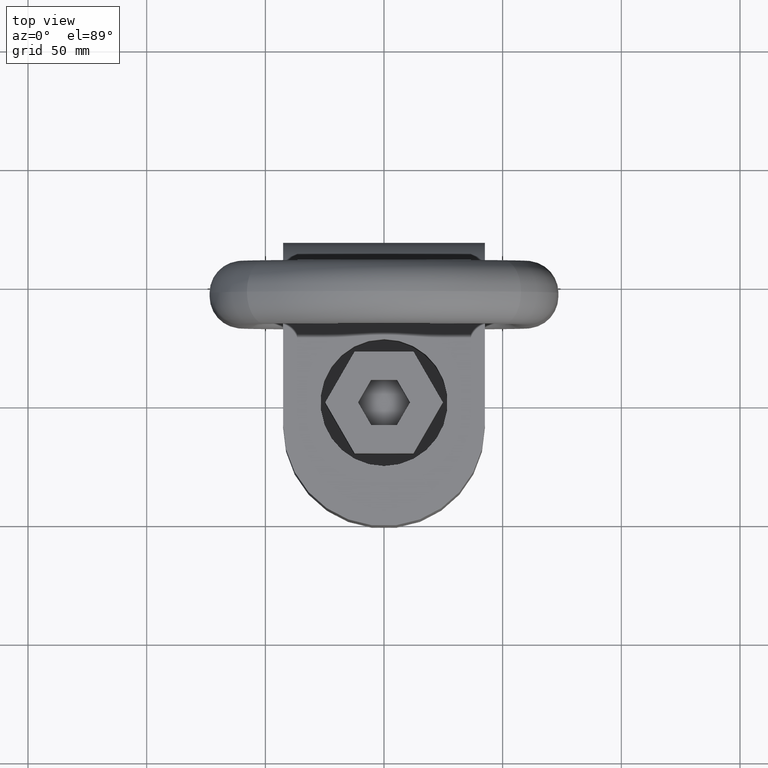
[diagram: clean part render]
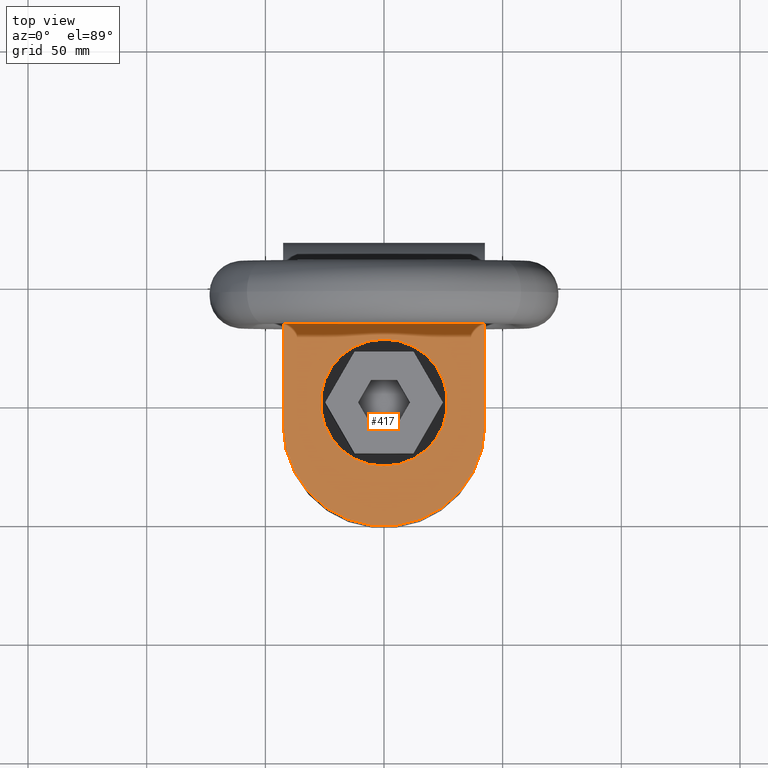
[diagram: same view with one face highlighted and labeled with its STEP entity id]
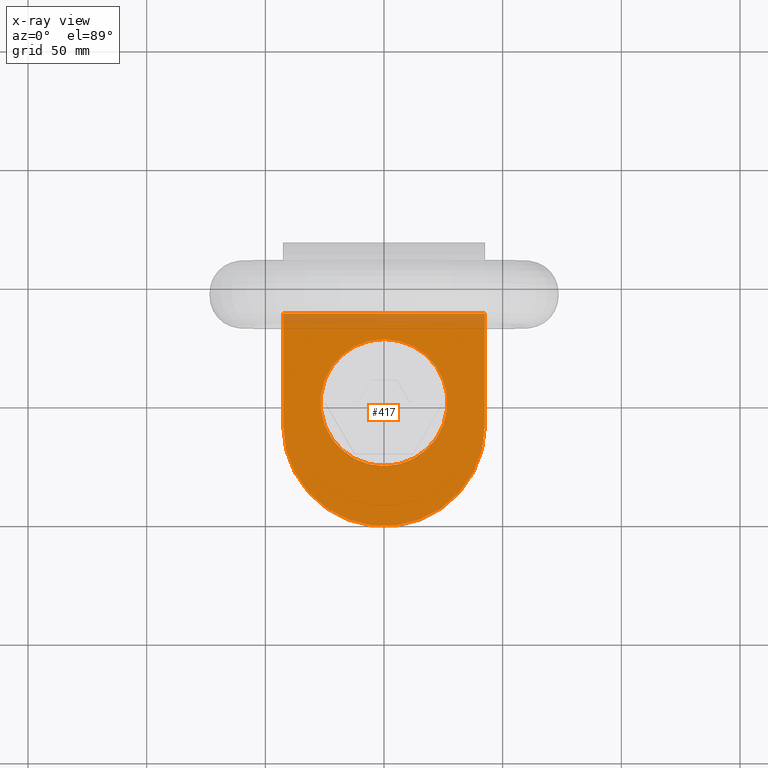
[diagram: x-ray of the same camera — body ghosted, the highlighted face saturated]
A machine part, top view. The second image highlights one B-rep face of the part: STEP entity #417.
The next image is the same camera in x-ray: the body ghosted, the highlighted face saturated — about 8% of this face is hidden behind the body in this view.
In plain terms, the highlighted planar face has unit normal (0, -0, -1).
Its self-contained STEP definition (entity closure, byte-faithful):
#247=PLANE('',#2500);
#417=ADVANCED_FACE('',(#585,#586),#247,.F.);
#585=FACE_BOUND('',#645,.T.);
#586=FACE_BOUND('',#646,.T.);
#645=EDGE_LOOP('',(#1224,#1225,#1226,#1227));
#646=EDGE_LOOP('',(#1228));
#809=LINE('',#3778,#939);
#810=LINE('',#3780,#940);
#811=LINE('',#3782,#941);
#939=VECTOR('',#2689,1.);
#940=VECTOR('',#2690,1.);
#941=VECTOR('',#2691,1.);
#1118=CIRCLE('',#2491,42.5);
#1122=CIRCLE('',#2499,26.768326548235);
#1224=ORIENTED_EDGE('',*,*,#2045,.T.);
#1225=ORIENTED_EDGE('',*,*,#2058,.F.);
#1226=ORIENTED_EDGE('',*,*,#2059,.T.);
#1227=ORIENTED_EDGE('',*,*,#2060,.T.);
#1228=ORIENTED_EDGE('',*,*,#2061,.F.);
#1832=VERTEX_POINT('',#3637);
#1833=VERTEX_POINT('',#3639);
#1842=VERTEX_POINT('',#3779);
#1843=VERTEX_POINT('',#3781);
#1844=VERTEX_POINT('',#3784);
#2045=EDGE_CURVE('',#1833,#1832,#1118,.T.);
#2058=EDGE_CURVE('',#1842,#1832,#809,.T.);
#2059=EDGE_CURVE('',#1842,#1843,#810,.T.);
#2060=EDGE_CURVE('',#1843,#1833,#811,.T.);
#2061=EDGE_CURVE('',#1844,#1844,#1122,.T.);
#2491=AXIS2_PLACEMENT_3D('',#3638,#2666,#2667);
#2499=AXIS2_PLACEMENT_3D('',#3783,#2692,#2693);
#2500=AXIS2_PLACEMENT_3D('',#3785,#2694,#2695);
#2666=DIRECTION('',(0.,1.55059081651558E-16,1.));
#2667=DIRECTION('',(0.,1.,-1.63268091856641E-16));
#2689=DIRECTION('',(0.,-1.,1.55059081651558E-16));
#2690=DIRECTION('',(-1.,0.,0.));
#2691=DIRECTION('',(0.,-1.,1.55059081651558E-16));
#2692=DIRECTION('',(0.,1.55059081651558E-16,1.));
#2693=DIRECTION('',(0.,1.,-2.5922030992127E-16));
#2694=DIRECTION('',(0.,-1.55059081651558E-16,-1.));
#2695=DIRECTION('',(0.,1.,-1.52655665885959E-16));
#3637=CARTESIAN_POINT('',(42.5,-9.49999999999999,61.));
#3638=CARTESIAN_POINT('',(0.,-9.49999999999999,61.));
#3639=CARTESIAN_POINT('',(-42.5,-9.49999999999999,61.));
#3778=CARTESIAN_POINT('',(42.5,37.5,61.));
#3779=CARTESIAN_POINT('',(42.5,37.5,61.));
#3780=CARTESIAN_POINT('',(42.5,37.5,61.));
#3781=CARTESIAN_POINT('',(-42.5,37.5,61.));
#3782=CARTESIAN_POINT('',(-42.5,37.5,61.));
#3783=CARTESIAN_POINT('',(0.,3.77191155802137E-15,61.));
#3784=CARTESIAN_POINT('',(0.,26.768326548235,61.));
#3785=CARTESIAN_POINT('',(42.5,37.5,61.));